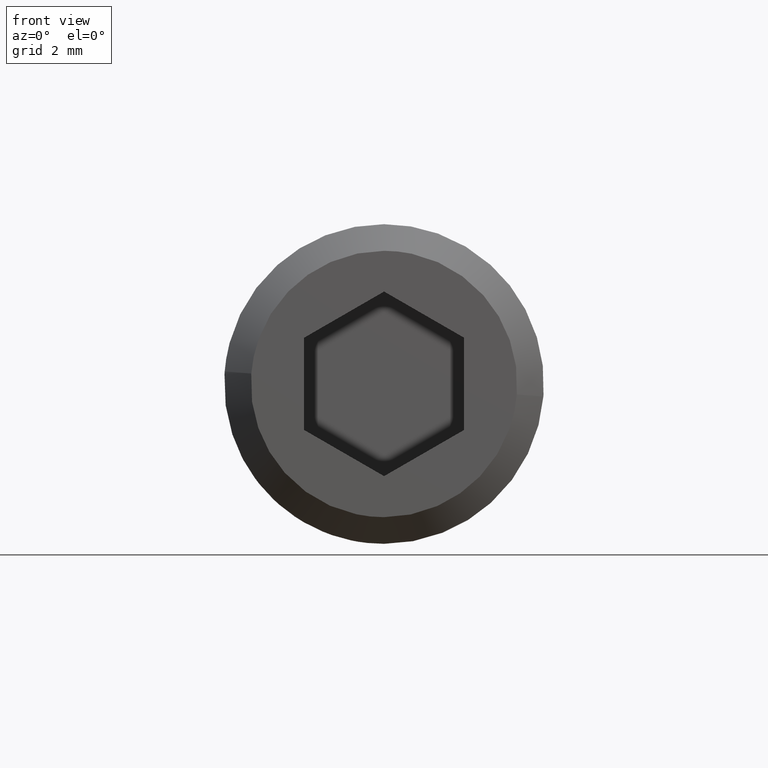
[diagram: clean part render]
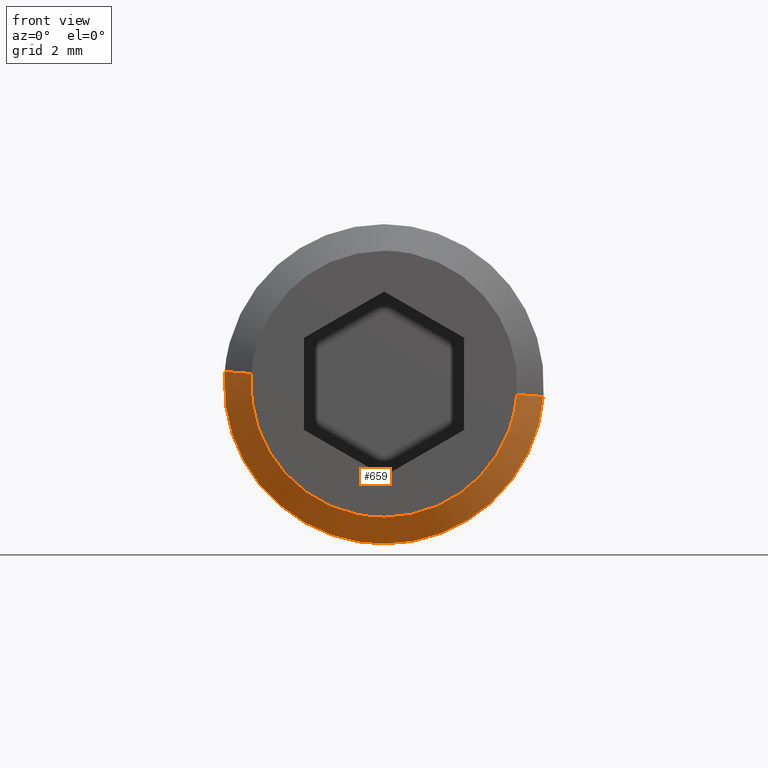
[diagram: same view with one face highlighted and labeled with its STEP entity id]
A machine part, front view. The second image highlights one B-rep face of the part: STEP entity #659.
In plain terms, the highlighted face is a freeform B-spline surface patch.
Its self-contained STEP definition (entity closure, byte-faithful):
#477=CARTESIAN_POINT('',(-2.994404411160120,-9.050000000000001,0.183145358731109));
#478=VERTEX_POINT('',#477);
#484=CARTESIAN_POINT('',(-2.990752001200102,-9.049999999998192,0.235377287197443));
#485=VERTEX_POINT('',#484);
#486=CARTESIAN_POINT('',(-2.990752001200102,-9.049999999998192,0.235377287197443));
#487=CARTESIAN_POINT('',(-2.992806128093833,-9.050000000000003,0.209277130311658));
#488=CARTESIAN_POINT('',(-2.994404411160120,-9.050000000000001,0.183145358731109));
#496=(BOUNDED_CURVE()B_SPLINE_CURVE(2,(#486,#487,#488),.UNSPECIFIED.,.F.,.U.)B_SPLINE_CURVE_WITH_KNOTS((3,3),(0.736331300631189,0.739332992191385),.UNSPECIFIED.)CURVE()GEOMETRIC_REPRESENTATION_ITEM()RATIONAL_B_SPLINE_CURVE((0.969723356168522,0.972855506814733,0.976072105860511))REPRESENTATION_ITEM(''));
#497=EDGE_CURVE('',#485,#478,#496,.T.);
#537=CARTESIAN_POINT('',(2.990752001200102,-9.049999999998192,-0.235377287197445));
#538=VERTEX_POINT('',#537);
#554=CARTESIAN_POINT('',(0.0,-9.050000000000001,-3.000000000000001));
#555=VERTEX_POINT('',#554);
#556=CARTESIAN_POINT('',(0.0,-9.050000000000001,-3.000000000000001));
#557=CARTESIAN_POINT('',(2.773171474949010,-9.049999999999999,-3.000000000000000));
#558=CARTESIAN_POINT('',(2.990752001200102,-9.049999999998192,-0.235377287197445));
#566=(BOUNDED_CURVE()B_SPLINE_CURVE(2,(#556,#557,#558),.UNSPECIFIED.,.F.,.U.)B_SPLINE_CURVE_WITH_KNOTS((3,3),(0.0,0.236331300631189),.UNSPECIFIED.)CURVE()GEOMETRIC_REPRESENTATION_ITEM()RATIONAL_B_SPLINE_CURVE((1.0,0.723120658607046,0.969723356168522))REPRESENTATION_ITEM(''));
#567=EDGE_CURVE('',#555,#538,#566,.T.);
#569=CARTESIAN_POINT('',(-2.994404411160119,-9.050000000000001,0.183145358731109));
#570=CARTESIAN_POINT('',(-3.0,-9.050000000000001,0.091658029293647));
#571=CARTESIAN_POINT('',(-3.0,-9.050000000000001,-6.765950E-016));
#572=CARTESIAN_POINT('',(-3.0,-9.050000000000001,-3.0));
#573=CARTESIAN_POINT('',(0.0,-9.050000000000001,-3.000000000000001));
#581=(BOUNDED_CURVE()B_SPLINE_CURVE(2,(#569,#570,#571,#572,#573),.UNSPECIFIED.,.F.,.U.)B_SPLINE_CURVE_WITH_KNOTS((3,2,3),(0.739332992191385,0.750000000000000,1.0),.UNSPECIFIED.)CURVE()GEOMETRIC_REPRESENTATION_ITEM()RATIONAL_B_SPLINE_CURVE((0.976072105860512,0.987502822991306,1.0,0.707106781186548,1.0))REPRESENTATION_ITEM(''));
#582=EDGE_CURVE('',#478,#555,#581,.T.);
#592=CARTESIAN_POINT('',(2.479831867661154,-9.562500000000000,-0.195167000623016));
#593=CARTESIAN_POINT('',(2.284664867038139,-9.562500000000000,-2.674998868284170));
#594=CARTESIAN_POINT('',(-0.195167000623016,-9.562500000000000,-2.479831867661154));
#595=CARTESIAN_POINT('',(-2.674998868284169,-9.562500000000000,-2.284664867038139));
#596=CARTESIAN_POINT('',(-2.479831867661154,-9.562500000000000,0.195167000623015));
#597=CARTESIAN_POINT('',(3.003525004537839,-9.037187499999998,-0.236382544347550));
#598=CARTESIAN_POINT('',(2.767142460190290,-9.037187499999998,-3.239907548885388));
#599=CARTESIAN_POINT('',(-0.236382544347550,-9.037187499999998,-3.003525004537840));
#600=CARTESIAN_POINT('',(-3.239907548885388,-9.037187499999998,-2.767142460190290));
#601=CARTESIAN_POINT('',(-3.003525004537839,-9.037187499999998,0.236382544347549));
#609=(BOUNDED_SURFACE()B_SPLINE_SURFACE(2,1,((#592,#597),(#593,#598),(#594,#599),(#595,#600),(#596,#601)),.UNSPECIFIED.,.F.,.F.,.U.)B_SPLINE_SURFACE_WITH_KNOTS((3,2,3),(2,2),(0.0,4.991791193548761,9.983582387097522),(0.0,1.0),.UNSPECIFIED.)GEOMETRIC_REPRESENTATION_ITEM()RATIONAL_B_SPLINE_SURFACE(((1.0,1.0),(0.707106781186548,0.707106781186548),(1.0,1.0),(0.707106781186548,0.707106781186548),(1.0,1.0)))REPRESENTATION_ITEM('')SURFACE());
#610=CARTESIAN_POINT('',(0.0,-9.549999999999999,-2.500000000000001));
#611=VERTEX_POINT('',#610);
#612=CARTESIAN_POINT('',(2.492293334333674,-9.549999999997848,-0.196147739336167));
#613=VERTEX_POINT('',#612);
#614=CARTESIAN_POINT('',(0.0,-9.549999999999999,-2.500000000000001));
#615=CARTESIAN_POINT('',(2.310976229115038,-9.549999999999999,-2.500000000000000));
#616=CARTESIAN_POINT('',(2.492293334333674,-9.549999999997848,-0.196147739336167));
#624=(BOUNDED_CURVE()B_SPLINE_CURVE(2,(#614,#615,#616),.UNSPECIFIED.,.F.,.U.)B_SPLINE_CURVE_WITH_KNOTS((3,3),(0.0,0.236331300630513),.UNSPECIFIED.)CURVE()GEOMETRIC_REPRESENTATION_ITEM()RATIONAL_B_SPLINE_CURVE((1.0,0.723120658607837,0.969723356167112))REPRESENTATION_ITEM(''));
#625=EDGE_CURVE('',#611,#613,#624,.T.);
#626=ORIENTED_EDGE('',*,*,#625,.F.);
#627=CARTESIAN_POINT('',(-2.492293334333675,-9.549999999997848,0.196147739336166));
#628=VERTEX_POINT('',#627);
#629=CARTESIAN_POINT('',(-2.492293334333675,-9.549999999997848,0.196147739336166));
#630=CARTESIAN_POINT('',(-2.500000000000000,-9.550000000000001,0.098225267535634));
#631=CARTESIAN_POINT('',(-2.500000000000000,-9.549999999999999,-6.765950E-016));
#632=CARTESIAN_POINT('',(-2.500000000000000,-9.549999999999999,-2.500000000000001));
#633=CARTESIAN_POINT('',(0.0,-9.549999999999999,-2.500000000000001));
#641=(BOUNDED_CURVE()B_SPLINE_CURVE(2,(#629,#630,#631,#632,#633),.UNSPECIFIED.,.F.,.U.)B_SPLINE_CURVE_WITH_KNOTS((3,2,3),(0.736331300630513,0.750000000000000,1.0),.UNSPECIFIED.)CURVE()GEOMETRIC_REPRESENTATION_ITEM()RATIONAL_B_SPLINE_CURVE((0.969723356167112,0.983986122578710,1.0,0.707106781186548,1.0))REPRESENTATION_ITEM(''));
#642=EDGE_CURVE('',#628,#611,#641,.T.);
#643=ORIENTED_EDGE('',*,*,#642,.F.);
#644=CARTESIAN_POINT('',(-2.492293334333675,-9.549999999997848,0.196147739336166));
#645=CARTESIAN_POINT('',(-2.990752001200102,-9.049999999998192,0.235377287197443));
#646=QUASI_UNIFORM_CURVE('',1,(#644,#645),.UNSPECIFIED.,.F.,.U.);
#647=EDGE_CURVE('',#628,#485,#646,.T.);
#648=ORIENTED_EDGE('',*,*,#647,.T.);
#649=ORIENTED_EDGE('',*,*,#497,.T.);
#650=ORIENTED_EDGE('',*,*,#582,.T.);
#651=ORIENTED_EDGE('',*,*,#567,.T.);
#652=CARTESIAN_POINT('',(2.492293334333674,-9.549999999997848,-0.196147739336167));
#653=CARTESIAN_POINT('',(2.990752001200102,-9.049999999998192,-0.235377287197445));
#654=QUASI_UNIFORM_CURVE('',1,(#652,#653),.UNSPECIFIED.,.F.,.U.);
#655=EDGE_CURVE('',#613,#538,#654,.T.);
#656=ORIENTED_EDGE('',*,*,#655,.F.);
#657=EDGE_LOOP('',(#626,#643,#648,#649,#650,#651,#656));
#658=FACE_OUTER_BOUND('',#657,.T.);
#659=ADVANCED_FACE('',(#658),#609,.T.);